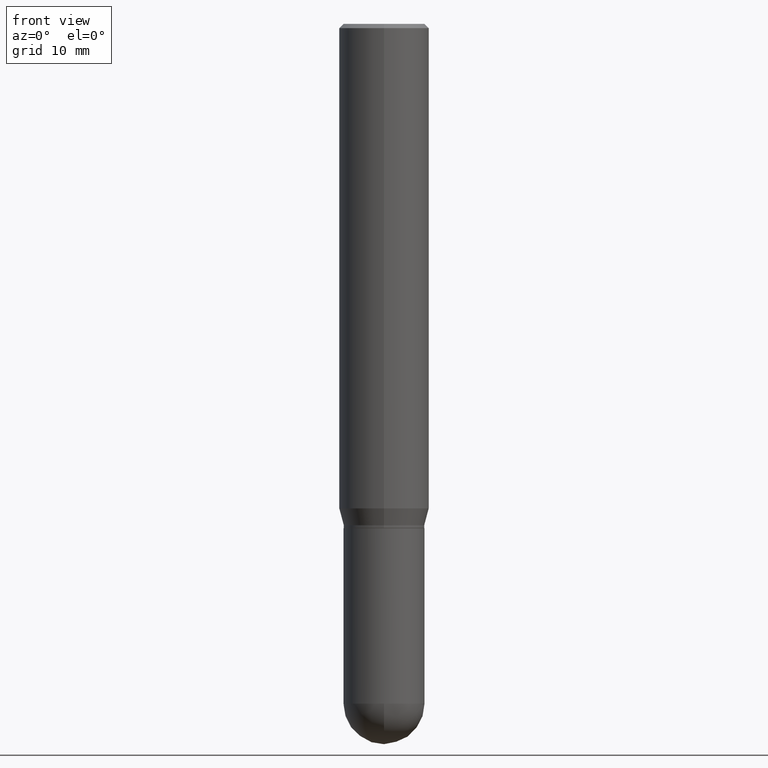
[diagram: clean part render]
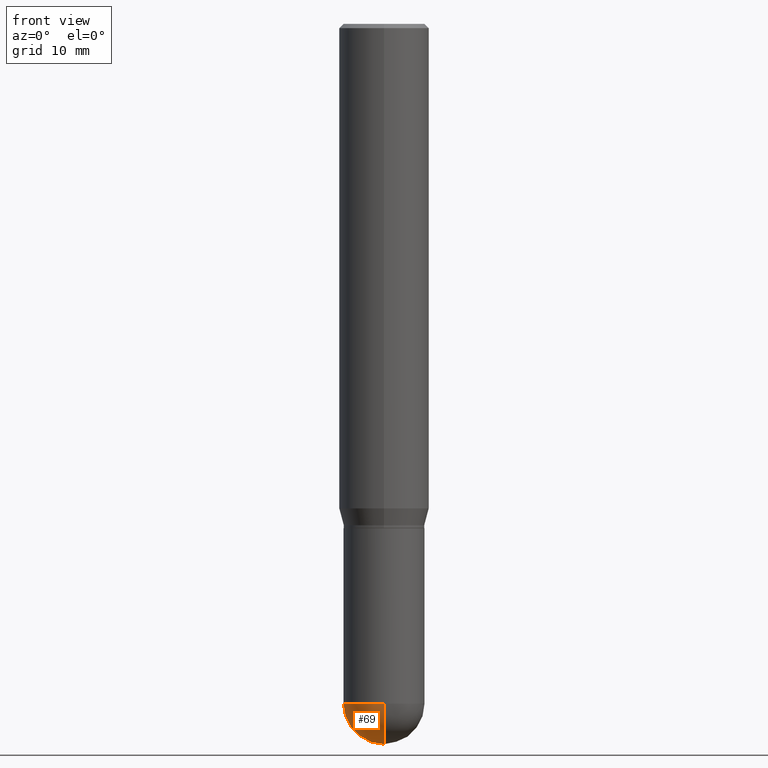
[diagram: same view with one face highlighted and labeled with its STEP entity id]
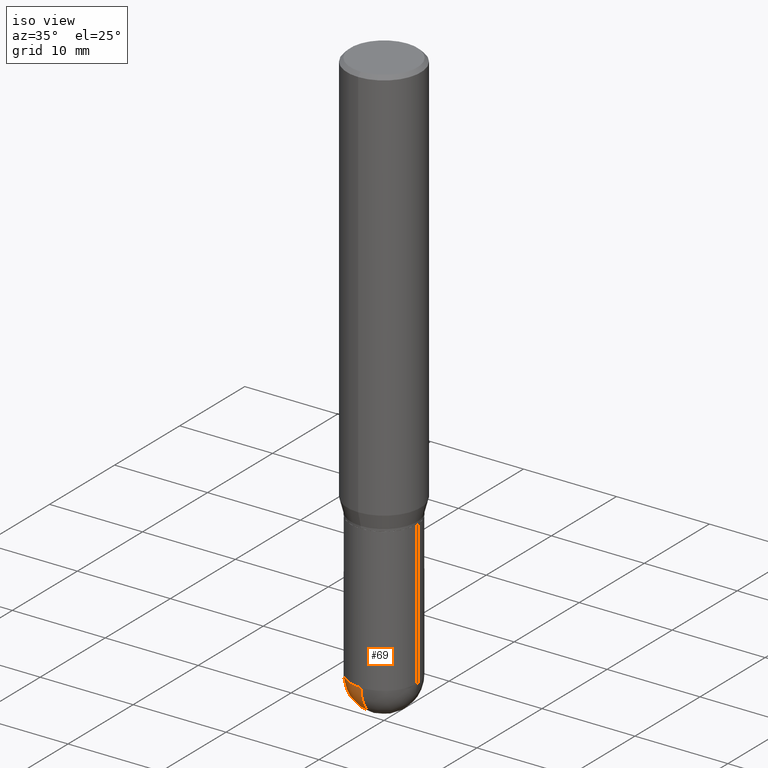
[diagram: same view with one face highlighted and labeled with its STEP entity id]
A machine part, front view. The second image highlights one B-rep face of the part: STEP entity #69.
A second angle (iso view) of the same face is appended — the face is thin or edge-on in the first view.
In plain terms, the highlighted spherical surface has radius 3.5712 mm.
Its self-contained STEP definition (entity closure, byte-faithful):
#31 = ORIENTED_EDGE ( 'NONE', *, *, #297, .F. ) ;
#47 = CARTESIAN_POINT ( 'NONE',  ( -0.1406000000000000583, -6.174923620442310269E-15, -2.359399999999999942 ) ) ;
#69 = ADVANCED_FACE ( 'NONE', ( #227 ), #235, .T. ) ;
#75 = AXIS2_PLACEMENT_3D ( 'NONE', #432, #128, #441 ) ;
#76 = VERTEX_POINT ( 'NONE', #47 ) ;
#109 = CIRCLE ( 'NONE', #399, 0.1406000000000000860 ) ;
#119 = DIRECTION ( 'NONE',  ( 6.982962677686265922E-15, 1.000000000000000000, -3.885985766236502230E-15 ) ) ;
#128 = DIRECTION ( 'NONE',  ( -2.445468806185136597E-29, 3.491481338843145583E-15, 1.000000000000000000 ) ) ;
#147 = EDGE_CURVE ( 'NONE', #283, #322, #172, .T. ) ;
#158 = CIRCLE ( 'NONE', #75, 0.1406000000000000305 ) ;
#164 = CIRCLE ( 'NONE', #269, 0.1406000000000000305 ) ;
#172 = CIRCLE ( 'NONE', #291, 0.1406000000000000860 ) ;
#203 = EDGE_CURVE ( 'NONE', #76, #322, #158, .T. ) ;
#206 = CARTESIAN_POINT ( 'NONE',  ( 5.757815463287349061E-29, -8.255019604862529009E-15, -2.359399999999999942 ) ) ;
#210 = DIRECTION ( 'NONE',  ( -1.000000000000000000, 7.105427357601001070E-15, -4.926315508542082329E-29 ) ) ;
#217 = EDGE_CURVE ( 'NONE', #283, #470, #109, .T. ) ;
#227 = FACE_OUTER_BOUND ( 'NONE', #497, .T. ) ;
#235 = SPHERICAL_SURFACE ( 'NONE', #273, 0.1406000000000000860 ) ;
#240 = CARTESIAN_POINT ( 'NONE',  ( 6.107660196449910766E-29, -8.737312614105869844E-15, -2.500000000000000000 ) ) ;
#256 = CARTESIAN_POINT ( 'NONE',  ( 5.769839101313211634E-29, -8.237801070866517629E-15, -2.359399999999999942 ) ) ;
#269 = AXIS2_PLACEMENT_3D ( 'NONE', #256, #509, #345 ) ;
#273 = AXIS2_PLACEMENT_3D ( 'NONE', #396, #313, #119 ) ;
#280 = DIRECTION ( 'NONE',  ( 6.982962677686266711E-15, 1.000000000000000000, 0.000000000000000000 ) ) ;
#283 = VERTEX_POINT ( 'NONE', #240 ) ;
#291 = AXIS2_PLACEMENT_3D ( 'NONE', #206, #210, #484 ) ;
#297 = EDGE_CURVE ( 'NONE', #470, #76, #164, .T. ) ;
#313 = DIRECTION ( 'NONE',  ( -1.000000000000000000, 6.982962677686265922E-15, -4.883557194083112340E-29 ) ) ;
#318 = ORIENTED_EDGE ( 'NONE', *, *, #217, .F. ) ;
#321 = CARTESIAN_POINT ( 'NONE',  ( 5.757815463287349061E-29, -8.255019604862529009E-15, -2.359399999999999942 ) ) ;
#322 = VERTEX_POINT ( 'NONE', #329 ) ;
#329 = CARTESIAN_POINT ( 'NONE',  ( -9.990230864786434913E-16, -0.1406000000000083017, -2.359399999999999498 ) ) ;
#345 = DIRECTION ( 'NONE',  ( 1.000000000000000000, -6.982962677686270655E-15, 0.000000000000000000 ) ) ;
#384 = ORIENTED_EDGE ( 'NONE', *, *, #147, .T. ) ;
#396 = CARTESIAN_POINT ( 'NONE',  ( 5.757815463287349061E-29, -8.255019604862529009E-15, -2.359399999999999942 ) ) ;
#399 = AXIS2_PLACEMENT_3D ( 'NONE', #321, #445, #280 ) ;
#421 = ORIENTED_EDGE ( 'NONE', *, *, #203, .F. ) ;
#432 = CARTESIAN_POINT ( 'NONE',  ( 5.769839101313211634E-29, -8.237801070866517629E-15, -2.359399999999999942 ) ) ;
#441 = DIRECTION ( 'NONE',  ( 1.000000000000000000, -6.982962677686270655E-15, 0.000000000000000000 ) ) ;
#445 = DIRECTION ( 'NONE',  ( 1.000000000000000000, -6.982962677686265922E-15, 4.883557194083112340E-29 ) ) ;
#462 = CARTESIAN_POINT ( 'NONE',  ( 9.818045524827470871E-16, 0.1405999999999918426, -2.359400000000000386 ) ) ;
#470 = VERTEX_POINT ( 'NONE', #462 ) ;
#484 = DIRECTION ( 'NONE',  ( -7.105427357601001859E-15, -1.000000000000000000, 0.000000000000000000 ) ) ;
#497 = EDGE_LOOP ( 'NONE', ( #318, #384, #421, #31 ) ) ;
#509 = DIRECTION ( 'NONE',  ( -2.445468806185136597E-29, 3.491481338843145583E-15, 1.000000000000000000 ) ) ;